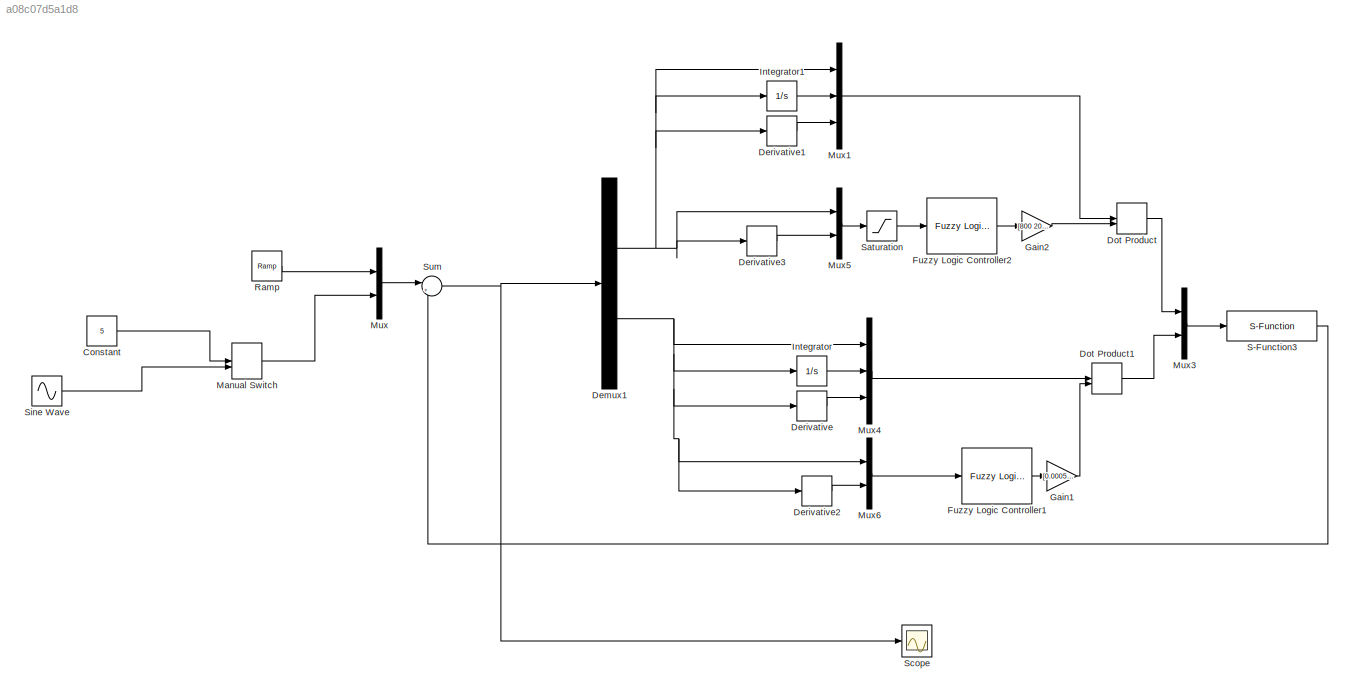
MODEL slx_a08c07d5a1d8
KIND model
CONFIG AbsTol = auto
CONFIG EnableMultiTasking = off
CONFIG FixedStep = auto
CONFIG MaxStep = auto
CONFIG MinStep = auto
CONFIG RelTol = 1e-3
CONFIG SampleTimeConstraint = Unconstrained
CONFIG SolverName = VariableStepAuto
CONFIG StartTime = 0.0
CONFIG StopTime = 40
BLOCK [Constant] Constant
  Value = 5
BLOCK [Demux] Demux1
  Outputs = 2
BLOCK [Derivative] Derivative
BLOCK [Derivative] Derivative1
BLOCK [Derivative] Derivative2
BLOCK [Derivative] Derivative3
BLOCK [DotProduct] Dot Product
  OutDataTypeStr = Inherit: Inherit via internal rule
BLOCK [DotProduct] Dot Product1
  OutDataTypeStr = Inherit: Inherit via internal rule
BLOCK [Reference] Fuzzy Logic Controller1  REF=fuzblock/Fuzzy Logic   (lib defined in mdl_858b3b3e7478)
Controller
  SourceBlock = fuzblock/Fuzzy Logic \nController
  SourceType = Fuzzy Inference System
BLOCK [Reference] Fuzzy Logic Controller2  REF=fuzblock/Fuzzy Logic   (lib defined in mdl_858b3b3e7478)
Controller
  SourceBlock = fuzblock/Fuzzy Logic \nController
  SourceType = Fuzzy Inference System
BLOCK [Gain] Gain1
  Gain = [0.0005 0 0.002]
BLOCK [Gain] Gain2
  Gain = [800 200 800]
BLOCK [Integrator] Integrator
BLOCK [Integrator] Integrator1
BLOCK [ManualSwitch] Manual Switch
BLOCK [Mux] Mux
  DisplayOption = bar
  Inputs = 2
BLOCK [Mux] Mux1
  DisplayOption = bar
  Inputs = 3
BLOCK [Mux] Mux3
  DisplayOption = bar
  Inputs = 2
BLOCK [Mux] Mux4
  DisplayOption = bar
  Inputs = 3
BLOCK [Mux] Mux5
  DisplayOption = bar
  Inputs = 2
BLOCK [Mux] Mux6
  DisplayOption = bar
  Inputs = 2
BLOCK [Reference] Ramp  REF=simulink/Sources/Ramp
  SourceBlock = simulink/Sources/Ramp
  SourceType = Ramp
BLOCK [S-Function] S-Function3
  EnableBusSupport = off
  FunctionName = model
  SFcnIsStateOwnerBlock = off
  SFunctionDeploymentMode = off
BLOCK [Saturate] Saturation
  LowerLimit = -10
  UpperLimit = 10
BLOCK [Scope] Scope
  Floating = off
  NumInputPorts = 1
  ScopeSpecificationString = Simulink.scopes.TimeScopeBlockCfg('CurrentConfiguration', extmgr.ConfigurationSet(extmgr.Configuration('Core','General UI',true),extmgr.Configuration('Core','Source UI',true),extmgr.Configuration('Sources','WiredSimulink',true),extmgr.Configuration('Visuals','Time Domain',true,'SerializedDisplays',{struct('MinYLimReal','-2','MaxYLimReal','1','YLabelReal','','MinYLimMag','0.00000','MaxYLimMag','2.3...<+1542ch>
BLOCK [Sin] Sine Wave
  Amplitude = 4
  Frequency = 0.5
  SampleTime = 0
BLOCK [Sum] Sum
  Inputs = |+-
LINE Constant:1 -> Manual Switch:1
NET Demux1:1 -> Derivative1:1, Derivative3:1, Integrator1:1, Mux1:1, Mux5:1
NET Demux1:2 -> Derivative2:1, Derivative:1, Integrator:1, Mux4:1, Mux6:1
LINE Derivative1:1 -> Mux1:3
LINE Derivative2:1 -> Mux6:2
LINE Derivative3:1 -> Mux5:2
LINE Derivative:1 -> Mux4:3
LINE Dot Product1:1 -> Mux3:2
LINE Dot Product:1 -> Mux3:1
LINE Fuzzy Logic Controller1:1 -> Gain1:1
LINE Fuzzy Logic Controller2:1 -> Gain2:1
LINE Gain1:1 -> Dot Product1:2
LINE Gain2:1 -> Dot Product:2
LINE Integrator1:1 -> Mux1:2
LINE Integrator:1 -> Mux4:2
LINE Manual Switch:1 -> Mux:2
LINE Mux1:1 -> Dot Product:1
LINE Mux3:1 -> S-Function3:1
LINE Mux4:1 -> Dot Product1:1
LINE Mux5:1 -> Saturation:1
LINE Mux6:1 -> Fuzzy Logic Controller1:1
LINE Mux:1 -> Sum:1
LINE Ramp:1 -> Mux:1
LINE S-Function3:1 -> Sum:2
LINE Saturation:1 -> Fuzzy Logic Controller2:1
LINE Sine Wave:1 -> Manual Switch:2
NET Sum:1 -> Demux1:1, Scope:1
note: NET lines group one-source signal fan-out (src -> all destinations, sorted); 1:1 wires keep LINE
